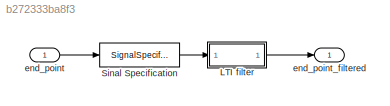
MODEL slx_b272333ba8f3
KIND model
CONFIG AbsTol = auto
CONFIG EnableMultiTasking = off
CONFIG FixedStep = 0.002
CONFIG MaxStep = auto
CONFIG MinStep = auto
CONFIG RelTol = 1e-3
CONFIG SampleTimeConstraint = Unconstrained
CONFIG Solver = FixedStepDiscrete
CONFIG SolverName = FixedStepDiscrete
CONFIG StartTime = 0.0
CONFIG StopTime = 10
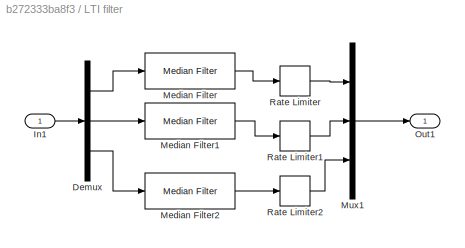
BLOCK [SubSystem] LTI filter 
  Ports = [1, 1]
  RequestExecContextInheritance = off
  Variant = off
BLOCK [Demux] LTI filter /Demux
  DisplayOption = bar
  Outputs = 3
  Ports = [1, 3]
BLOCK [Inport] LTI filter /In1
  IconDisplay = Port number
  PortDimensions = 3
BLOCK [Reference] LTI filter /Median Filter  REF=visionanalysis/Median Filter
  Ports = [1, 1]
  SourceBlock = visionanalysis/Median Filter
  SourceType = Median Filter
BLOCK [Reference] LTI filter /Median Filter1  REF=visionanalysis/Median Filter
  Ports = [1, 1]
  SourceBlock = visionanalysis/Median Filter
  SourceType = Median Filter
BLOCK [Reference] LTI filter /Median Filter2  REF=visionanalysis/Median Filter
  Ports = [1, 1]
  SourceBlock = visionanalysis/Median Filter
  SourceType = Median Filter
BLOCK [Mux] LTI filter /Mux1
  DisplayOption = bar
  Inputs = 3
  Ports = [3, 1]
BLOCK [Outport] LTI filter /Out1
  IconDisplay = Port number
  PortDimensions = 3
BLOCK [RateLimiter] LTI filter /Rate Limiter
  FallingSlewLimit = -rate_limit
  RisingSlewLimit = rate_limit
  SampleTimeMode = inherited
BLOCK [RateLimiter] LTI filter /Rate Limiter1
  FallingSlewLimit = -rate_limit
  RisingSlewLimit = rate_limit
  SampleTimeMode = inherited
BLOCK [RateLimiter] LTI filter /Rate Limiter2
  FallingSlewLimit = -rate_limit
  RisingSlewLimit = rate_limit
  SampleTimeMode = inherited
BLOCK [SignalSpecification] Sinal Specification
  Dimensions = 3
  OutDataTypeStr = double
BLOCK [Inport] end_point
  IconDisplay = Port number
  PortDimensions = 3
BLOCK [Outport] end_point_filtered
  IconDisplay = Port number
  PortDimensions = 3
LINE LTI filter /Demux:1 -> LTI filter /Median Filter:1
LINE LTI filter /Demux:2 -> LTI filter /Median Filter1:1
LINE LTI filter /Demux:3 -> LTI filter /Median Filter2:1
LINE LTI filter /In1:1 -> LTI filter /Demux:1
LINE LTI filter /Median Filter1:1 -> LTI filter /Rate Limiter1:1
LINE LTI filter /Median Filter2:1 -> LTI filter /Rate Limiter2:1
LINE LTI filter /Median Filter:1 -> LTI filter /Rate Limiter:1
LINE LTI filter /Mux1:1 -> LTI filter /Out1:1
LINE LTI filter /Rate Limiter1:1 -> LTI filter /Mux1:2
LINE LTI filter /Rate Limiter2:1 -> LTI filter /Mux1:3
LINE LTI filter /Rate Limiter:1 -> LTI filter /Mux1:1
LINE LTI filter :1 -> end_point_filtered:1
LINE Sinal Specification:1 -> LTI filter :1
LINE end_point:1 -> Sinal Specification:1
